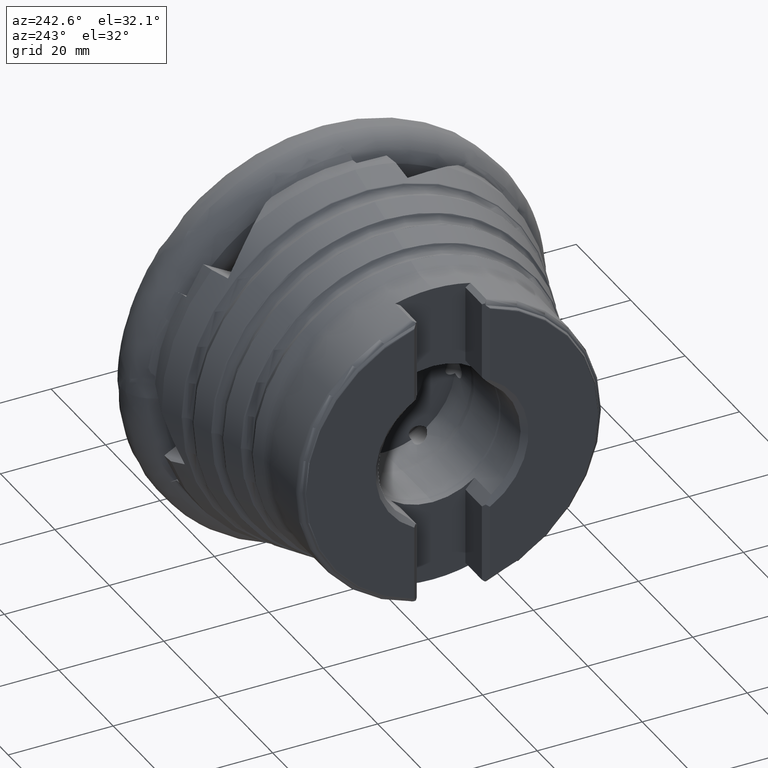
[diagram: clean part render]
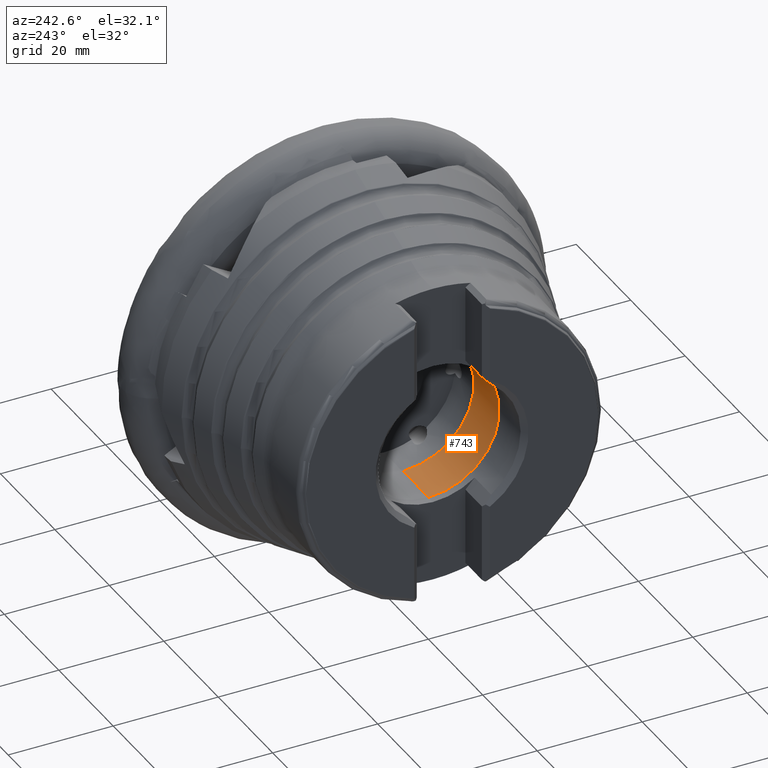
[diagram: same view with one face highlighted and labeled with its STEP entity id]
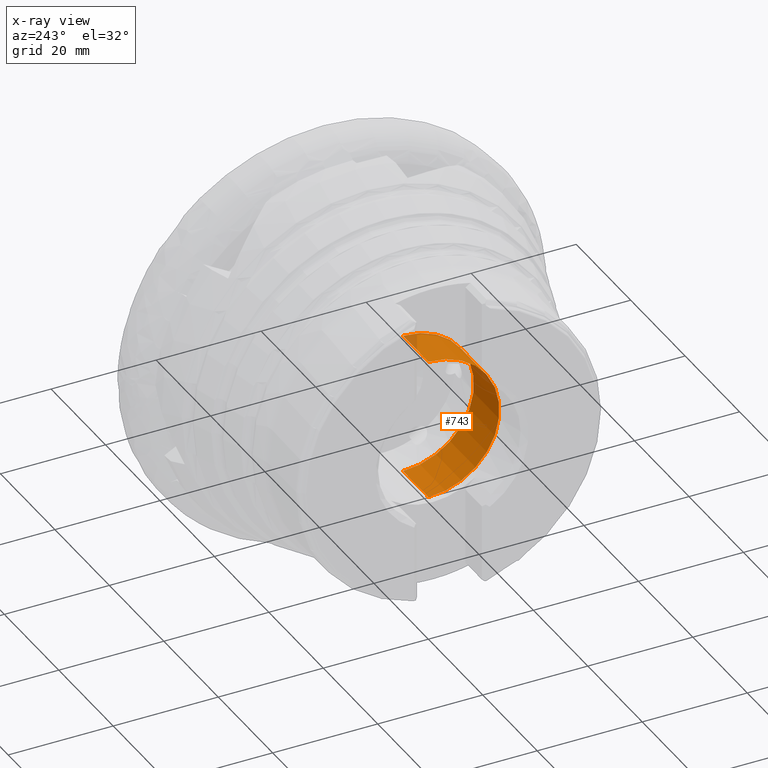
[diagram: x-ray of the same camera — body ghosted, the highlighted face saturated]
A machine part, auxiliary view. The second image highlights one B-rep face of the part: STEP entity #743.
The next image is the same camera in x-ray: the body ghosted, the highlighted face saturated — about 4% of this face is hidden behind the body in this view.
In plain terms, the highlighted cylindrical surface (partial cylindrical patch) has radius 13.5 mm, axis along (1, -0, -0).
Its self-contained STEP definition (entity closure, byte-faithful):
#137 = CIRCLE ( 'NONE', #2151, 13.49999999999999600 ) ;
#743 = ADVANCED_FACE ( 'NONE', ( #7297 ), #9141, .F. ) ;
#931 = CARTESIAN_POINT ( 'NONE',  ( -30.70000000000001000, 1.653273178848926700E-015, 13.49999999999999800 ) ) ;
#1015 = VERTEX_POINT ( 'NONE', #1396 ) ;
#1034 = ORIENTED_EDGE ( 'NONE', *, *, #7597, .F. ) ;
#1330 = ORIENTED_EDGE ( 'NONE', *, *, #1739, .F. ) ;
#1396 = CARTESIAN_POINT ( 'NONE',  ( -40.05000000000001100, 0.0000000000000000000, 13.49999999999999500 ) ) ;
#1616 = CARTESIAN_POINT ( 'NONE',  ( 0.0000000000000000000, 0.0000000000000000000, 0.0000000000000000000 ) ) ;
#1667 = DIRECTION ( 'NONE',  ( 0.0000000000000000000, 0.0000000000000000000, -1.000000000000000000 ) ) ;
#1689 = ORIENTED_EDGE ( 'NONE', *, *, #9896, .T. ) ;
#1739 = EDGE_CURVE ( 'NONE', #1015, #2146, #9501, .T. ) ;
#1781 = EDGE_LOOP ( 'NONE', ( #1330, #4325, #1689, #1034 ) ) ;
#2146 = VERTEX_POINT ( 'NONE', #3075 ) ;
#2151 = AXIS2_PLACEMENT_3D ( 'NONE', #6405, #3956, #1667 ) ;
#3075 = CARTESIAN_POINT ( 'NONE',  ( -40.05000000000001100, 1.657865604345728500E-015, -13.49999999999999500 ) ) ;
#3121 = CARTESIAN_POINT ( 'NONE',  ( -40.05000000000001100, 0.0000000000000000000, 0.0000000000000000000 ) ) ;
#3183 = DIRECTION ( 'NONE',  ( 1.000000000000000000, -0.0000000000000000000, -0.0000000000000000000 ) ) ;
#3216 = DIRECTION ( 'NONE',  ( 0.0000000000000000000, 0.0000000000000000000, -1.000000000000000000 ) ) ;
#3617 = VECTOR ( 'NONE', #4858, 1000.000000000000000 ) ;
#3846 = VECTOR ( 'NONE', #7029, 1000.000000000000000 ) ;
#3956 = DIRECTION ( 'NONE',  ( 1.000000000000000000, -0.0000000000000000000, -0.0000000000000000000 ) ) ;
#4325 = ORIENTED_EDGE ( 'NONE', *, *, #6744, .T. ) ;
#4857 = AXIS2_PLACEMENT_3D ( 'NONE', #1616, #7851, #8668 ) ;
#4858 = DIRECTION ( 'NONE',  ( 1.000000000000000000, -0.0000000000000000000, -0.0000000000000000000 ) ) ;
#5292 = LINE ( 'NONE', #8681, #3617 ) ;
#5453 = CARTESIAN_POINT ( 'NONE',  ( 0.0000000000000000000, 0.0000000000000000000, -13.49999999999999500 ) ) ;
#5512 = AXIS2_PLACEMENT_3D ( 'NONE', #3121, #3183, #3216 ) ;
#5853 = CARTESIAN_POINT ( 'NONE',  ( -30.70000000000001000, 0.0000000000000000000, -13.49999999999999600 ) ) ;
#5886 = VERTEX_POINT ( 'NONE', #931 ) ;
#5896 = LINE ( 'NONE', #5453, #3846 ) ;
#6405 = CARTESIAN_POINT ( 'NONE',  ( -30.70000000000001000, 0.0000000000000000000, 0.0000000000000000000 ) ) ;
#6455 = VERTEX_POINT ( 'NONE', #5853 ) ;
#6744 = EDGE_CURVE ( 'NONE', #1015, #5886, #5292, .T. ) ;
#7029 = DIRECTION ( 'NONE',  ( 1.000000000000000000, -0.0000000000000000000, -0.0000000000000000000 ) ) ;
#7297 = FACE_OUTER_BOUND ( 'NONE', #1781, .T. ) ;
#7597 = EDGE_CURVE ( 'NONE', #2146, #6455, #5896, .T. ) ;
#7851 = DIRECTION ( 'NONE',  ( 1.000000000000000000, -0.0000000000000000000, -0.0000000000000000000 ) ) ;
#8668 = DIRECTION ( 'NONE',  ( 0.0000000000000000000, 0.0000000000000000000, -1.000000000000000000 ) ) ;
#8681 = CARTESIAN_POINT ( 'NONE',  ( 0.0000000000000000000, 1.653273178848926300E-015, 13.49999999999999500 ) ) ;
#9141 = CYLINDRICAL_SURFACE ( 'NONE', #4857, 13.49999999999999500 ) ;
#9501 = CIRCLE ( 'NONE', #5512, 13.49999999999999500 ) ;
#9896 = EDGE_CURVE ( 'NONE', #5886, #6455, #137, .T. ) ;